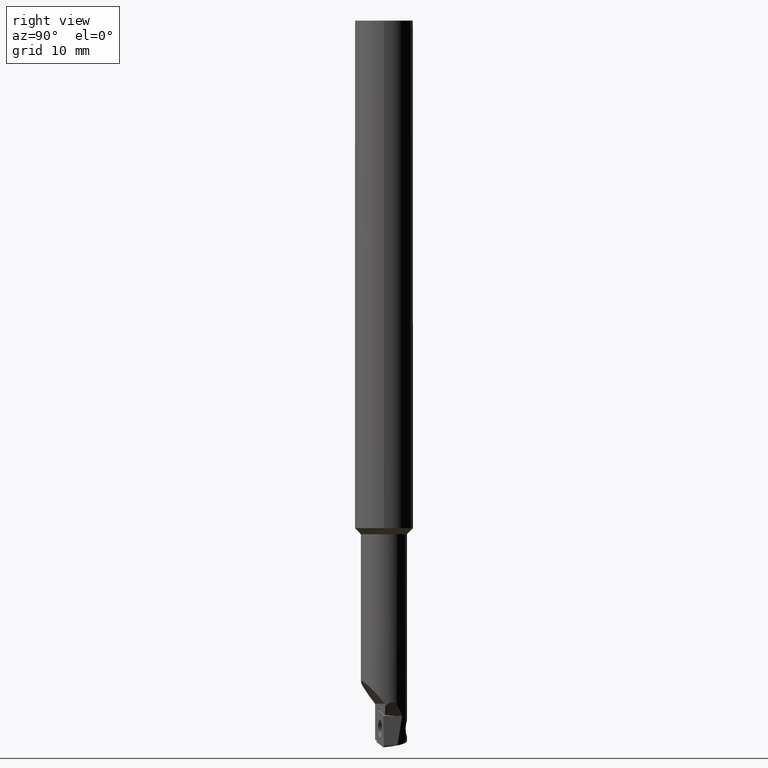
[diagram: clean part render]
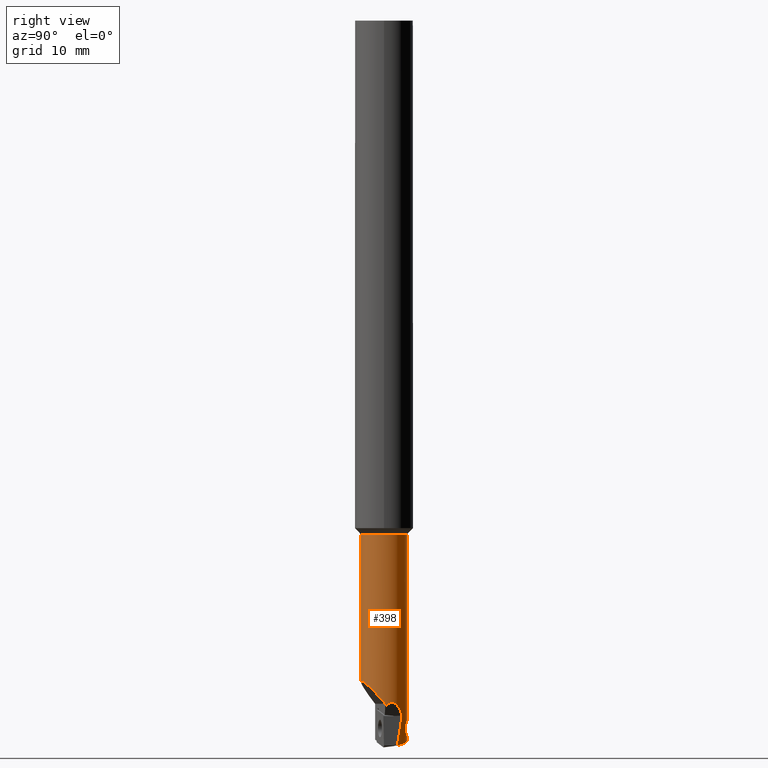
[diagram: same view with one face highlighted and labeled with its STEP entity id]
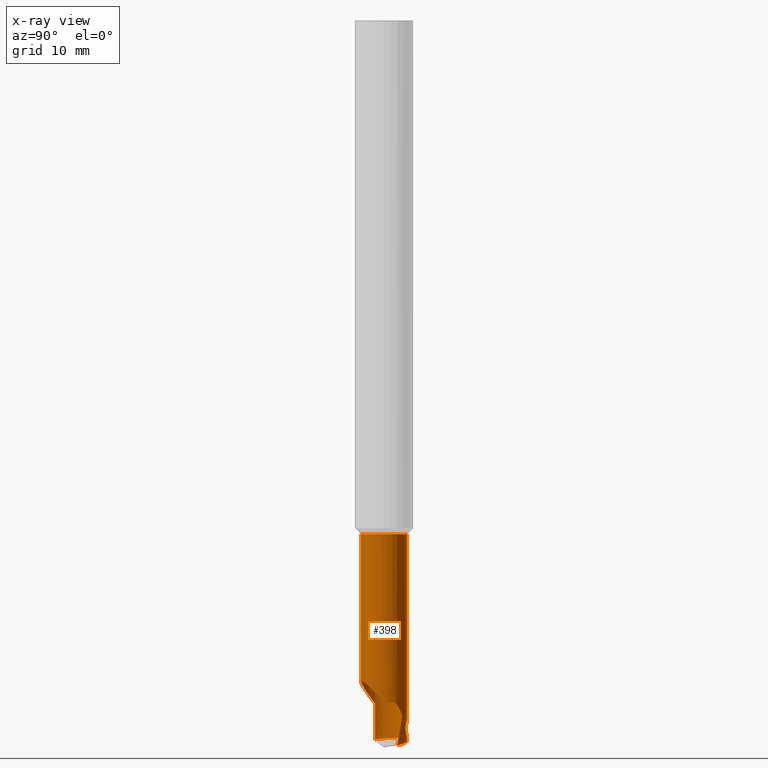
[diagram: x-ray of the same camera — body ghosted, the highlighted face saturated]
A machine part, right view. The second image highlights one B-rep face of the part: STEP entity #398.
The next image is the same camera in x-ray: the body ghosted, the highlighted face saturated — about 0% of this face is hidden behind the body in this view.
In plain terms, the highlighted cylindrical surface (bore or boss wall) has radius 2.375 mm, axis along (-0, -0, 1).
Its self-contained STEP definition (entity closure, byte-faithful):
#180=EDGE_CURVE('240[2]',#482,#483,#484,.T.);
#182=EDGE_CURVE('240[2]',#486,#487,#488,.T.);
#207=EDGE_CURVE('240[2]',#449,#526,#527,.T.);
#235=EDGE_CURVE('240[2]',#491,#565,#566,.T.);
#264=EDGE_CURVE('240[2]',#604,#605,#606,.T.);
#276=EDGE_CURVE('240[2]',#526,#604,#622,.T.);
#283=EDGE_CURVE('240[2]',#630,#630,#631,.T.);
#297=EDGE_CURVE('240[2]',#557,#647,#648,.T.);
#307=EDGE_CURVE('240[2]',#605,#557,#660,.T.);
#317=EDGE_CURVE('240[2]',#483,#486,#670,.T.);
#342=EDGE_CURVE('240[2]',#697,#491,#698,.T.);
#355=EDGE_CURVE('240[2]',#647,#697,#714,.T.);
#357=EDGE_CURVE('240[2]',#565,#490,#716,.T.);
#386=EDGE_CURVE('240[2]',#487,#482,#754,.T.);
#398=ADVANCED_FACE('240[2]',(#768,#769,#770),#771,.T.);
#400=EDGE_CURVE('240[2]',#490,#449,#773,.T.);
#449=VERTEX_POINT('NONE',#825);
#482=VERTEX_POINT('NONE',#871);
#483=VERTEX_POINT('NONE',#872);
#484=B_SPLINE_CURVE_WITH_KNOTS('',3,(#873,#874,#875,#876,#877,#878,#879,#880,#881,#882),.UNSPECIFIED.,.F.,.F.,(4,2,2,2,4),(0.00256295524754296,0.00286891891404309,0.00317488258054323,0.00348084624704337,0.00378680991354351),.UNSPECIFIED.);
#486=VERTEX_POINT('NONE',#885);
#487=VERTEX_POINT('NONE',#886);
#488=B_SPLINE_CURVE_WITH_KNOTS('',3,(#887,#888,#889,#890,#891,#892,#893,#894,#895,#896),.UNSPECIFIED.,.F.,.F.,(4,2,2,2,4),(0.0,0.000334651317153453,0.000669302634306905,0.00100395395146036,0.00133860526861381),.UNSPECIFIED.);
#490=VERTEX_POINT('NONE',#899);
#491=VERTEX_POINT('NONE',#900);
#526=VERTEX_POINT('NONE',#959);
#527=(B_SPLINE_CURVE(3,(#961,#962,#963,#964),.UNSPECIFIED.,.F.,.F.)B_SPLINE_CURVE_WITH_KNOTS((4,4),(2.84607286082738,3.70046177676425),.UNSPECIFIED.)RATIONAL_B_SPLINE_CURVE((1.0,0.940087812957445,0.940087812957445,1.0))BOUNDED_CURVE()REPRESENTATION_ITEM('')GEOMETRIC_REPRESENTATION_ITEM()CURVE());
#557=VERTEX_POINT('NONE',#1012);
#565=VERTEX_POINT('NONE',#1026);
#566=(B_SPLINE_CURVE(3,(#1028,#1029,#1030,#1031),.UNSPECIFIED.,.F.,.F.)B_SPLINE_CURVE_WITH_KNOTS((4,4),(1.74002394670947,2.91469985083053),.UNSPECIFIED.)RATIONAL_B_SPLINE_CURVE((1.0,0.8882791952247,0.8882791952247,1.0))BOUNDED_CURVE()REPRESENTATION_ITEM('')GEOMETRIC_REPRESENTATION_ITEM()CURVE());
#604=VERTEX_POINT('NONE',#1096);
#605=VERTEX_POINT('NONE',#1097);
#606=B_SPLINE_CURVE_WITH_KNOTS('',3,(#1098,#1099,#1100,#1101,#1102,#1103),.UNSPECIFIED.,.F.,.F.,(4,2,4),(0.000471818961113864,0.000474516834930693,0.000477214708747523),.UNSPECIFIED.);
#622=(B_SPLINE_CURVE(3,(#1131,#1132,#1133,#1134),.UNSPECIFIED.,.F.,.F.)B_SPLINE_CURVE_WITH_KNOTS((4,4),(5.72070686141561,6.00254468861064),.UNSPECIFIED.)RATIONAL_B_SPLINE_CURVE((1.0,0.993391566729963,0.993391566729963,1.0))BOUNDED_CURVE()REPRESENTATION_ITEM('')GEOMETRIC_REPRESENTATION_ITEM()CURVE());
#630=VERTEX_POINT('NONE',#1151);
#631=CIRCLE('',#1152,2.375);
#647=VERTEX_POINT('NONE',#1180);
#648=(B_SPLINE_CURVE(3,(#1182,#1183,#1184,#1185),.UNSPECIFIED.,.F.,.F.)B_SPLINE_CURVE_WITH_KNOTS((4,4),(1.09640706682924,1.9712992581124),.UNSPECIFIED.)RATIONAL_B_SPLINE_CURVE((1.0,0.93722434673783,0.93722434673783,1.0))BOUNDED_CURVE()REPRESENTATION_ITEM('')GEOMETRIC_REPRESENTATION_ITEM()CURVE());
#660=B_SPLINE_CURVE_WITH_KNOTS('',3,(#1207,#1208,#1209,#1210,#1211,#1212,#1213,#1214,#1215,#1216),.UNSPECIFIED.,.F.,.F.,(4,2,2,2,4),(0.000477214708747523,0.000498894333914737,0.000520573959081952,0.000563933209416375,0.000650651710085228),.UNSPECIFIED.);
#670=B_SPLINE_CURVE_WITH_KNOTS('',3,(#1234,#1235,#1236,#1237,#1238,#1239,#1240,#1241),.UNSPECIFIED.,.F.,.F.,(4,2,2,4),(0.00378680991354351,0.0044560946107118,0.00479073695929595,0.00512537930788009),.UNSPECIFIED.);
#697=VERTEX_POINT('NONE',#1283);
#698=LINE('',#1284,#1285);
#714=(B_SPLINE_CURVE(3,(#1308,#1309,#1310,#1311),.UNSPECIFIED.,.F.,.F.)B_SPLINE_CURVE_WITH_KNOTS((4,4),(1.9712992581124,3.93821600758113),.UNSPECIFIED.)RATIONAL_B_SPLINE_CURVE((1.0,0.702764700185272,0.702764700185272,1.0))BOUNDED_CURVE()REPRESENTATION_ITEM('')GEOMETRIC_REPRESENTATION_ITEM()CURVE());
#716=(B_SPLINE_CURVE(3,(#1321,#1322,#1323,#1324),.UNSPECIFIED.,.F.,.F.)B_SPLINE_CURVE_WITH_KNOTS((4,4),(2.91469985083053,4.54316136047012),.UNSPECIFIED.)RATIONAL_B_SPLINE_CURVE((1.0,0.790951993255684,0.790951993255684,1.0))BOUNDED_CURVE()REPRESENTATION_ITEM('')GEOMETRIC_REPRESENTATION_ITEM()CURVE());
#754=B_SPLINE_CURVE_WITH_KNOTS('',3,(#1380,#1381,#1382,#1383,#1384,#1385,#1386,#1387,#1388,#1389),.UNSPECIFIED.,.F.,.F.,(4,2,2,2,4),(0.00133860526861381,0.0016446927633461,0.00195078025807838,0.00225686775281067,0.00256295524754296),.UNSPECIFIED.);
#768=FACE_BOUND('',#1409,.T.);
#769=FACE_BOUND('',#1410,.T.);
#770=FACE_BOUND('',#1411,.T.);
#771=CYLINDRICAL_SURFACE('',#1412,2.375);
#773=LINE('',#1415,#1416);
#825=CARTESIAN_POINT('',(2.37105233204615,0.1368789198462,4.25500723912339));
#871=CARTESIAN_POINT('',(-0.76109970071838,2.24974492900116,1.95627228544464));
#872=CARTESIAN_POINT('',(-4.44089209850063E-016,2.37500000000001,1.1568436844118));
#873=CARTESIAN_POINT('',(-0.76109970071838,2.24974492900116,1.95627228544464));
#874=CARTESIAN_POINT('',(-0.761099700718379,2.24974492900116,1.85418027332452));
#875=CARTESIAN_POINT('',(-0.742107431757916,2.25640903551027,1.75114798689398));
#876=CARTESIAN_POINT('',(-0.66863328135698,2.27926187851781,1.5614443626439));
#877=CARTESIAN_POINT('',(-0.614061605512701,2.29535733529052,1.47393382739071));
#878=CARTESIAN_POINT('',(-0.474874085749507,2.32813907546788,1.32612453525087));
#879=CARTESIAN_POINT('',(-0.391626780935021,2.34440344785283,1.2668386187453));
#880=CARTESIAN_POINT('',(-0.203657458474467,2.36814752527318,1.18320414335405));
#881=CARTESIAN_POINT('',(-0.102668329469668,2.37500000000001,1.16062665444436));
#882=CARTESIAN_POINT('',(-4.44089209850063E-016,2.37500000000001,1.1568436844118));
#885=CARTESIAN_POINT('',(0.892232954528337,2.20103279277109,1.95627228544464));
#886=CARTESIAN_POINT('',(8.88178419700125E-016,2.37500000000001,2.75570088647748));
#887=CARTESIAN_POINT('',(0.892232954528337,2.20103279277109,1.95627228544464));
#888=CARTESIAN_POINT('',(0.892232954528336,2.20103279277109,2.06966624190957));
#889=CARTESIAN_POINT('',(0.864479090801983,2.21269568500161,2.18030368898437));
#890=CARTESIAN_POINT('',(0.766490123120082,2.24851933147525,2.37834924281903));
#891=CARTESIAN_POINT('',(0.696491393988443,2.27221137148894,2.46613905138013));
#892=CARTESIAN_POINT('',(0.530057713341141,2.31669669986194,2.60980094528765));
#893=CARTESIAN_POINT('',(0.433695430018031,2.33746866960779,2.66608151310392));
#894=CARTESIAN_POINT('',(0.223825091447318,2.36680244968927,2.74151879118422));
#895=CARTESIAN_POINT('',(0.113044532426336,2.37500000000001,2.75986618341692));
#896=CARTESIAN_POINT('',(8.88178419700125E-016,2.37500000000001,2.75570088647748));
#899=CARTESIAN_POINT('',(2.3710523320462,0.136878919846211,4.50000000000001));
#900=CARTESIAN_POINT('',(-2.19109148857111,-0.916374971674374,4.50000000000001));
#959=CARTESIAN_POINT('',(1.45379150076579,1.87806157308571,3.26560323579979));
#961=CARTESIAN_POINT('',(2.37105233204615,0.1368789198462,4.25500723912339));
#962=CARTESIAN_POINT('',(2.3308351384084,0.83353163211497,5.03319472608372));
#963=CARTESIAN_POINT('',(2.00559572331065,1.45091461458406,4.68237501552517));
#964=CARTESIAN_POINT('',(1.45379150076579,1.87806157308571,3.26560323579979));
#1012=CARTESIAN_POINT('',(1.82275168272642,1.52256405550572,0.226429980781745));
#1026=CARTESIAN_POINT('',(-4.44089209850063E-016,-2.37499999999999,6.78116999786945));
#1028=CARTESIAN_POINT('',(-2.19109148857111,-0.916374971674374,4.50000000000001));
#1029=CARTESIAN_POINT('',(-1.80997521324402,-1.82764017733498,5.6603414055521));
#1030=CARTESIAN_POINT('',(-0.987751937667983,-2.37499999999999,6.51636730751807));
#1031=CARTESIAN_POINT('',(-4.44089209850063E-016,-2.37499999999999,6.78116999786945));
#1096=CARTESIAN_POINT('',(1.9187626760933,1.39963380669063,0.272956237203389));
#1097=CARTESIAN_POINT('',(1.9192856378153,1.3989165952536,0.26754893405554));
#1098=CARTESIAN_POINT('',(1.9187626760933,1.39963380669063,0.272956237203389));
#1099=CARTESIAN_POINT('',(1.9189313843455,1.39940252398231,0.272087011487969));
#1100=CARTESIAN_POINT('',(1.91906211953511,1.39922321451675,0.271201448008768));
#1101=CARTESIAN_POINT('',(1.91923954249718,1.39897984302576,0.26939411633046));
#1102=CARTESIAN_POINT('',(1.91928563781531,1.3989165952536,0.268464849285778));
#1103=CARTESIAN_POINT('',(1.9192856378153,1.3989165952536,0.26754893405554));
#1131=CARTESIAN_POINT('',(1.45379150076579,1.87806157308571,3.26560323579979));
#1132=CARTESIAN_POINT('',(1.63081423826686,1.74102977662629,1.9568610778155));
#1133=CARTESIAN_POINT('',(1.78683568737784,1.58049295763893,0.952675988127382));
#1134=CARTESIAN_POINT('',(1.9187626760933,1.39963380669063,0.272956237203389));
#1151=CARTESIAN_POINT('',(-8.88178419700125E-016,-2.37499999999999,22.0));
#1152=AXIS2_PLACEMENT_3D('',#1621,#1622,#1623);
#1180=CARTESIAN_POINT('',(0.0,2.37500000000001,0.653181839153277));
#1182=CARTESIAN_POINT('',(1.82275168272642,1.52256405550572,0.226429980781745));
#1183=CARTESIAN_POINT('',(1.36395018800954,2.07182252086127,0.361540161629037));
#1184=CARTESIAN_POINT('',(0.715670086924954,2.37500000000001,0.513318783207041));
#1185=CARTESIAN_POINT('',(0.0,2.37500000000001,0.653181839153277));
#1207=CARTESIAN_POINT('',(1.9192856378153,1.3989165952536,0.26754893405554));
#1208=CARTESIAN_POINT('',(1.9192856378153,1.39891659525361,0.260188805218917));
#1209=CARTESIAN_POINT('',(1.91632312354677,1.4029835433002,0.253796138128493));
#1210=CARTESIAN_POINT('',(1.90960372912653,1.41211569438105,0.244422671556066));
#1211=CARTESIAN_POINT('',(1.90578222928104,1.41727312400447,0.241004450719331));
#1212=CARTESIAN_POINT('',(1.89386078604892,1.43321051382411,0.232298791255389));
#1213=CARTESIAN_POINT('',(1.88531501803124,1.44444211808028,0.228731487013761));
#1214=CARTESIAN_POINT('',(1.85926318079614,1.47802855971364,0.221481076330534));
#1215=CARTESIAN_POINT('',(1.84091837348294,1.50081563314788,0.221080161955968));
#1216=CARTESIAN_POINT('',(1.82275168272642,1.52256405550572,0.226429980781745));
#1234=CARTESIAN_POINT('',(-4.44089209850063E-016,2.37500000000001,1.1568436844118));
#1235=CARTESIAN_POINT('',(0.224583338877755,2.37500000000001,1.14856857128605));
#1236=CARTESIAN_POINT('',(0.448240618824073,2.33861396883137,1.23184727473382));
#1237=CARTESIAN_POINT('',(0.696738210241517,2.27212089319291,1.44675616570953));
#1238=CARTESIAN_POINT('',(0.766579268923595,2.24848587970804,1.53440065139117));
#1239=CARTESIAN_POINT('',(0.864320631578167,2.21275447635254,1.73189548702518));
#1240=CARTESIAN_POINT('',(0.892232954528336,2.20103279277109,1.84288136790866));
#1241=CARTESIAN_POINT('',(0.892232954528337,2.20103279277109,1.95627228544464));
#1283=CARTESIAN_POINT('',(-2.19109148857111,-0.916374971674374,0.809050324841138));
#1284=CARTESIAN_POINT('',(-2.19109148857111,-0.916374971674384,75.0));
#1285=VECTOR('',#1686,1000.0);
#1308=CARTESIAN_POINT('',(0.0,2.37500000000001,0.653181839153277));
#1309=CARTESIAN_POINT('',(-1.87544482761375,2.37500000000001,1.01969910687328));
#1310=CARTESIAN_POINT('',(-2.91471704679487,0.813844480565286,1.09363019914679));
#1311=CARTESIAN_POINT('',(-2.19109148857111,-0.916374971674374,0.809050324841138));
#1321=CARTESIAN_POINT('',(-4.44089209850063E-016,-2.37499999999999,6.78116999786945));
#1322=CARTESIAN_POINT('',(1.45570969994729,-2.37499999999999,7.17142571918623));
#1323=CARTESIAN_POINT('',(2.45494958313606,-1.31641113440318,6.21006522477757));
#1324=CARTESIAN_POINT('',(2.3710523320462,0.136878919846211,4.50000000000001));
#1380=CARTESIAN_POINT('',(8.88178419700125E-016,2.37500000000001,2.75570088647748));
#1381=CARTESIAN_POINT('',(-0.103395731467253,2.37500000000001,2.75189111421706));
#1382=CARTESIAN_POINT('',(-0.203718365167983,2.36812849751848,2.72926894369813));
#1383=CARTESIAN_POINT('',(-0.39100527770029,2.34449325566878,2.64602673336451));
#1384=CARTESIAN_POINT('',(-0.474945358506581,2.32811808256325,2.58630722187772));
#1385=CARTESIAN_POINT('',(-0.613725023171181,2.2954408064375,2.43900523015076));
#1386=CARTESIAN_POINT('',(-0.66866760978491,2.27925070964353,2.35098502444642));
#1387=CARTESIAN_POINT('',(-0.742017687358412,2.25643744017717,2.16165482677674));
#1388=CARTESIAN_POINT('',(-0.761099700718382,2.24974492900116,2.05840561578242));
#1389=CARTESIAN_POINT('',(-0.76109970071838,2.24974492900116,1.95627228544464));
#1409=EDGE_LOOP('',(#1788));
#1410=EDGE_LOOP('',(#1789,#1790,#1791,#1792,#1793,#1794,#1795,#1796,#1797,#1798));
#1411=EDGE_LOOP('',(#1799,#1800,#1801,#1802));
#1412=AXIS2_PLACEMENT_3D('',#1803,#1804,#1805);
#1415=CARTESIAN_POINT('',(2.3710523320462,0.136878919846201,75.0));
#1416=VECTOR('',#1806,1000.0);
#1621=CARTESIAN_POINT('',(0.0,9.73594205322146E-015,22.0));
#1622=DIRECTION('',(1.12481983699639E-032,1.83697019872103E-016,-1.0));
#1623=DIRECTION('',(-1.83697019872103E-016,-1.0,-1.83697019872103E-016));
#1686=DIRECTION('',(-1.12481983699639E-032,-1.83697019872103E-016,1.0));
#1788=ORIENTED_EDGE('',*,*,#283,.T.);
#1789=ORIENTED_EDGE('',*,*,#297,.T.);
#1790=ORIENTED_EDGE('',*,*,#355,.T.);
#1791=ORIENTED_EDGE('',*,*,#342,.T.);
#1792=ORIENTED_EDGE('',*,*,#235,.T.);
#1793=ORIENTED_EDGE('',*,*,#357,.T.);
#1794=ORIENTED_EDGE('',*,*,#400,.T.);
#1795=ORIENTED_EDGE('',*,*,#207,.T.);
#1796=ORIENTED_EDGE('',*,*,#276,.T.);
#1797=ORIENTED_EDGE('',*,*,#264,.T.);
#1798=ORIENTED_EDGE('',*,*,#307,.T.);
#1799=ORIENTED_EDGE('',*,*,#180,.T.);
#1800=ORIENTED_EDGE('',*,*,#317,.T.);
#1801=ORIENTED_EDGE('',*,*,#182,.T.);
#1802=ORIENTED_EDGE('',*,*,#386,.T.);
#1803=CARTESIAN_POINT('',(0.0,0.0,75.0));
#1804=DIRECTION('',(-1.12481983699639E-032,-1.83697019872103E-016,1.0));
#1805=DIRECTION('',(-1.83697019872103E-016,-1.0,-1.83697019872103E-016));
#1806=DIRECTION('',(1.12481983699639E-032,1.83697019872103E-016,-1.0));